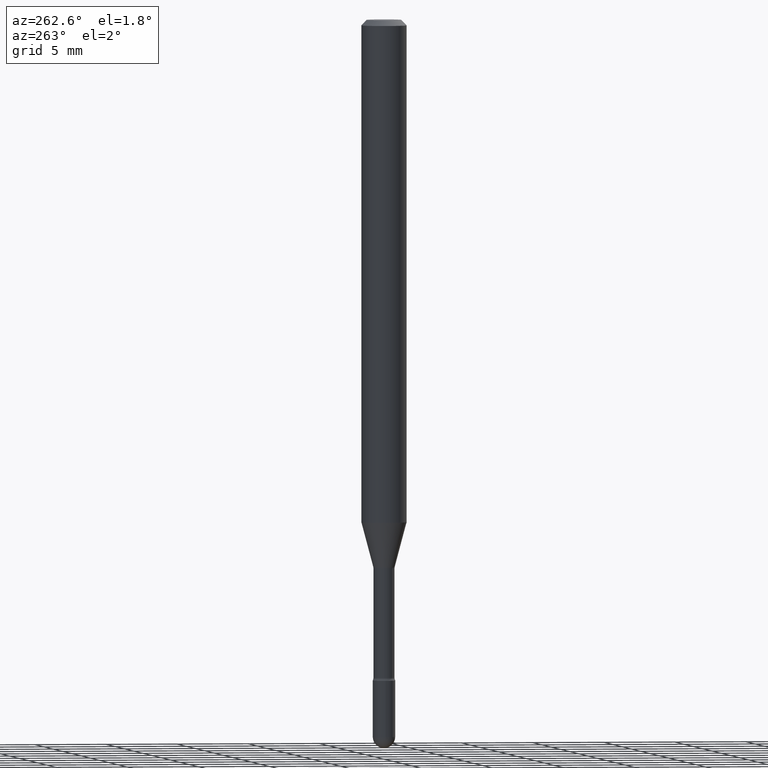
[diagram: clean part render]
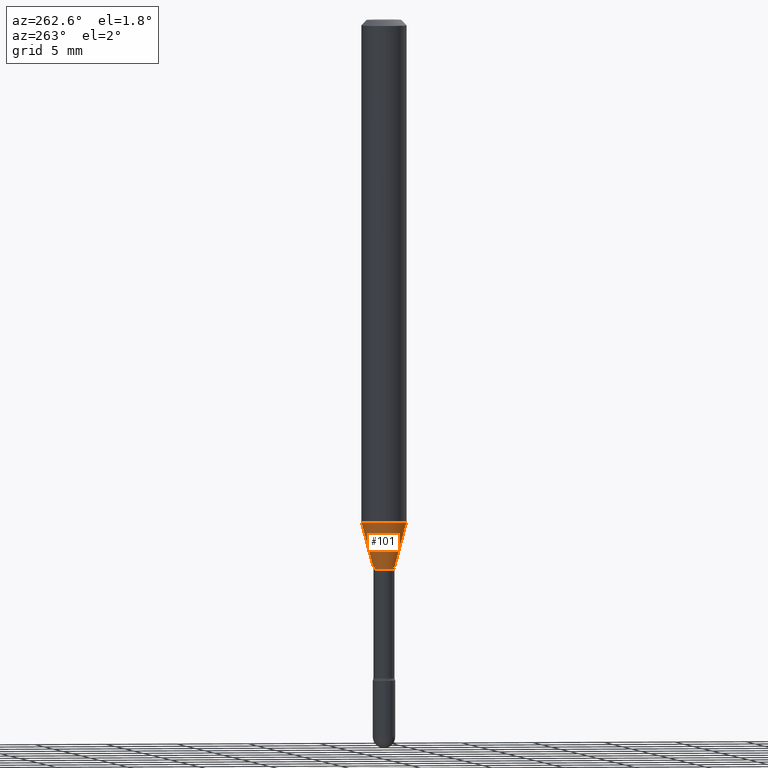
[diagram: same view with one face highlighted and labeled with its STEP entity id]
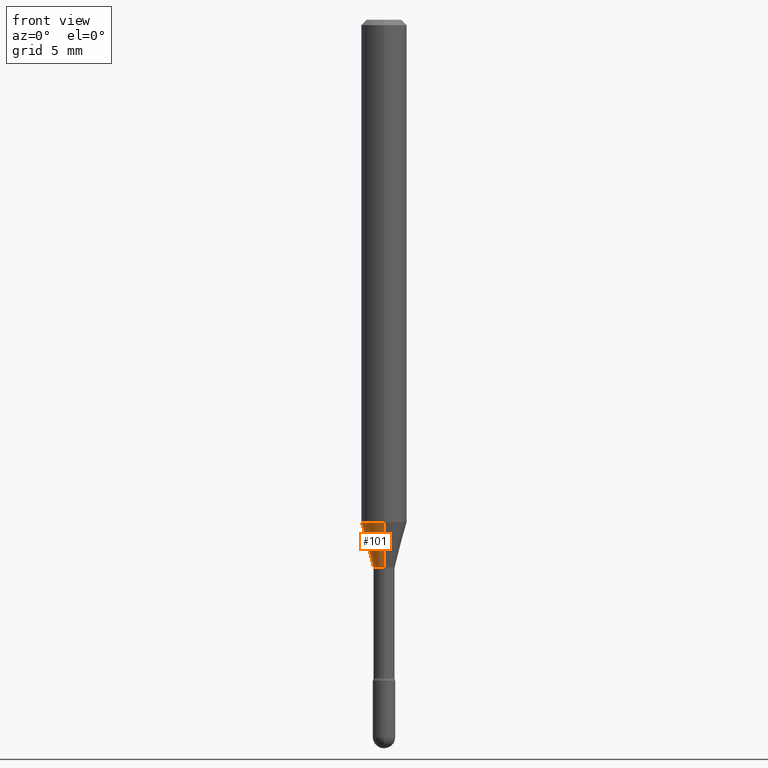
[diagram: same view with one face highlighted and labeled with its STEP entity id]
A machine part, auxiliary view. The second image highlights one B-rep face of the part: STEP entity #101.
A second angle (front view) of the same face is appended — the face is thin or edge-on in the first view.
In plain terms, the highlighted conical surface has half-angle 15 deg.
Its self-contained STEP definition (entity closure, byte-faithful):
#4 = FACE_OUTER_BOUND ( 'NONE', #164, .T. ) ;
#32 = DIRECTION ( 'NONE',  ( -6.982962677686265922E-15, -1.000000000000000000, 4.370956789862821150E-15 ) ) ;
#68 = VECTOR ( 'NONE', #309, 39.37007874015748854 ) ;
#86 = AXIS2_PLACEMENT_3D ( 'NONE', #225, #313, #32 ) ;
#95 = DIRECTION ( 'NONE',  ( -1.807323732225328562E-15, -0.2588190451025179639, 0.9659258262890690894 ) ) ;
#101 = ADVANCED_FACE ( 'NONE', ( #4 ), #551, .T. ) ;
#102 = DIRECTION ( 'NONE',  ( -2.445444533372823887E-29, 3.491516098891900000E-15, 1.000000000000000000 ) ) ;
#110 = ORIENTED_EDGE ( 'NONE', *, *, #204, .T. ) ;
#121 = AXIS2_PLACEMENT_3D ( 'NONE', #472, #566, #263 ) ;
#122 = ORIENTED_EDGE ( 'NONE', *, *, #125, .F. ) ;
#125 = EDGE_CURVE ( 'NONE', #538, #500, #433, .T. ) ;
#136 = DIRECTION ( 'NONE',  ( -6.982962677686265922E-15, -1.000000000000000000, 0.000000000000000000 ) ) ;
#137 = CIRCLE ( 'NONE', #86, 0.06250000000000000000 ) ;
#164 = EDGE_LOOP ( 'NONE', ( #122, #211, #110, #278 ) ) ;
#174 = CIRCLE ( 'NONE', #371, 0.02966111260566398414 ) ;
#175 = CARTESIAN_POINT ( 'NONE',  ( 3.274220454076509529E-16, 0.02966111260565873833, -1.502092501787273271 ) ) ;
#184 = EDGE_CURVE ( 'NONE', #538, #196, #174, .T. ) ;
#196 = VERTEX_POINT ( 'NONE', #424 ) ;
#204 = EDGE_CURVE ( 'NONE', #196, #363, #227, .T. ) ;
#211 = ORIENTED_EDGE ( 'NONE', *, *, #184, .T. ) ;
#225 = CARTESIAN_POINT ( 'NONE',  ( 3.373579027950668951E-29, -4.816672521591835884E-15, -1.379536105567578330 ) ) ;
#227 = LINE ( 'NONE', #395, #512 ) ;
#263 = DIRECTION ( 'NONE',  ( -6.982962677686265922E-15, -1.000000000000000000, 0.000000000000000000 ) ) ;
#278 = ORIENTED_EDGE ( 'NONE', *, *, #362, .F. ) ;
#309 = DIRECTION ( 'NONE',  ( 1.839019923739598738E-15, 0.2588190451025247363, 0.9659258262890673130 ) ) ;
#313 = DIRECTION ( 'NONE',  ( -2.445444533372823887E-29, 3.491516098891900000E-15, 1.000000000000000000 ) ) ;
#354 = CARTESIAN_POINT ( 'NONE',  ( 3.673283897115995853E-29, -5.244580152015073878E-15, -1.502092501787273271 ) ) ;
#362 = EDGE_CURVE ( 'NONE', #500, #363, #137, .T. ) ;
#363 = VERTEX_POINT ( 'NONE', #561 ) ;
#371 = AXIS2_PLACEMENT_3D ( 'NONE', #354, #102, #136 ) ;
#395 = CARTESIAN_POINT ( 'NONE',  ( -2.071224423039644956E-16, -0.02966111260566922994, -1.502092501787273271 ) ) ;
#424 = CARTESIAN_POINT ( 'NONE',  ( -2.071224423039644956E-16, -0.02966111260566922994, -1.502092501787273271 ) ) ;
#433 = LINE ( 'NONE', #536, #68 ) ;
#438 = CARTESIAN_POINT ( 'NONE',  ( 4.440892098500961428E-16, 0.06249999999999514971, -1.379536105567578552 ) ) ;
#472 = CARTESIAN_POINT ( 'NONE',  ( 3.673283897115995853E-29, -5.244580152015073878E-15, -1.502092501787273271 ) ) ;
#500 = VERTEX_POINT ( 'NONE', #438 ) ;
#512 = VECTOR ( 'NONE', #95, 39.37007874015748854 ) ;
#536 = CARTESIAN_POINT ( 'NONE',  ( 2.107548809652055165E-16, 0.02966111260565873833, -1.502092501787273271 ) ) ;
#538 = VERTEX_POINT ( 'NONE', #175 ) ;
#551 = CONICAL_SURFACE ( 'NONE', #121, 0.02966111260566398414, 0.2617993877991500740 ) ;
#561 = CARTESIAN_POINT ( 'NONE',  ( -4.364351673553580935E-16, -0.06250000000000484335, -1.379536105567578108 ) ) ;
#566 = DIRECTION ( 'NONE',  ( -2.445444533372823887E-29, 3.491516098891900000E-15, 1.000000000000000000 ) ) ;